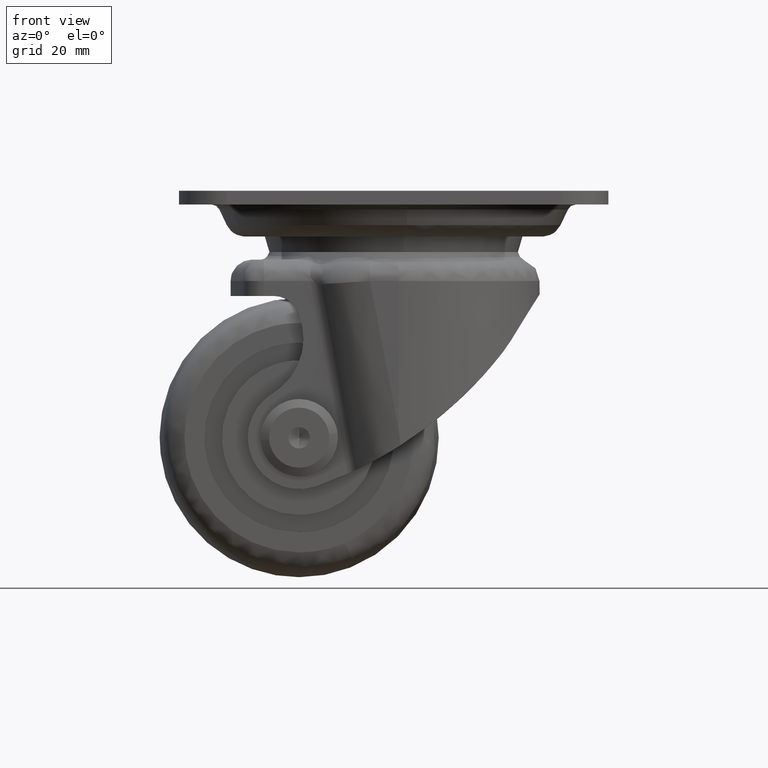
[diagram: clean part render]
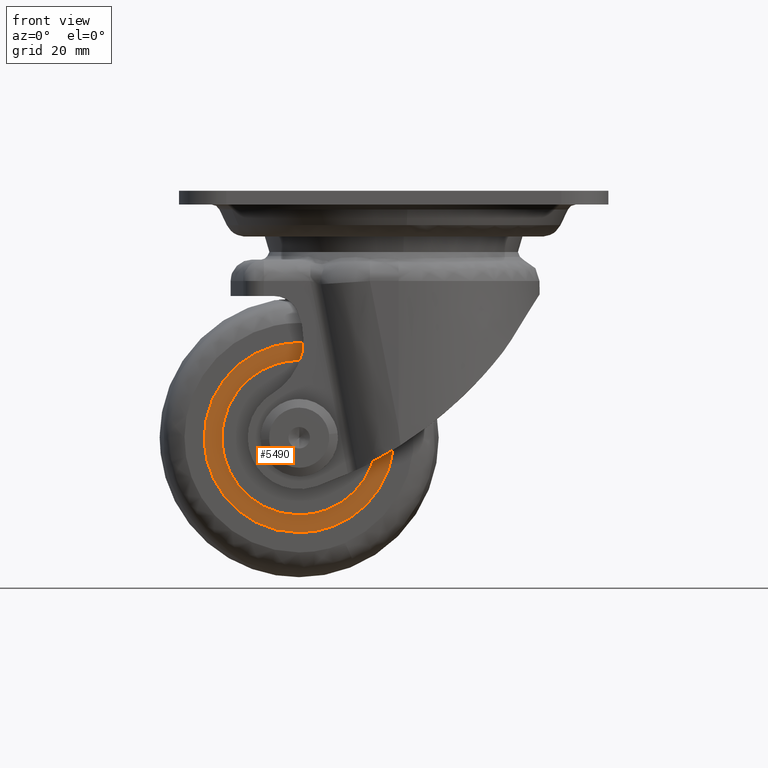
[diagram: same view with one face highlighted and labeled with its STEP entity id]
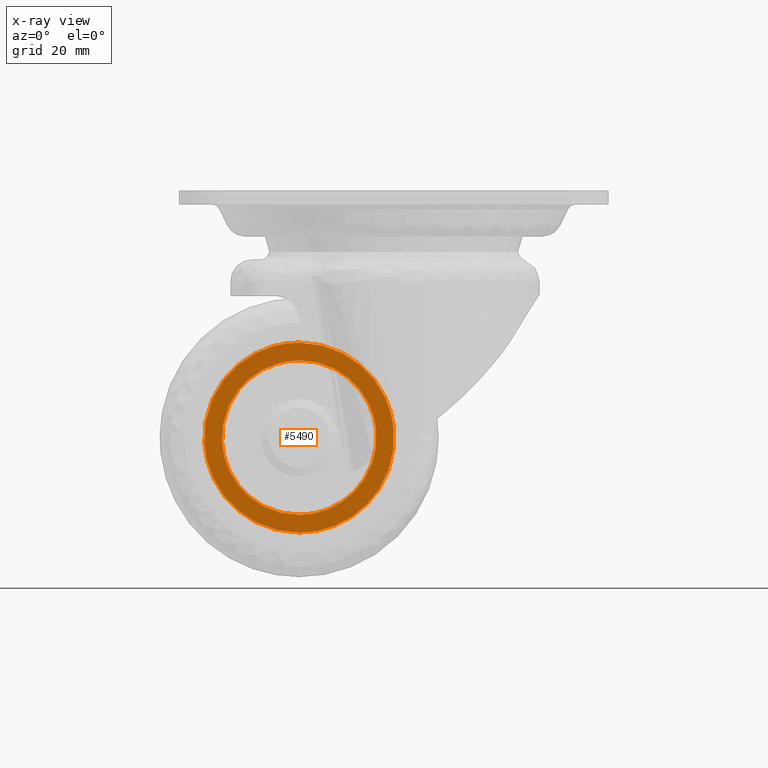
[diagram: x-ray of the same camera — body ghosted, the highlighted face saturated]
A machine part, front view. The second image highlights one B-rep face of the part: STEP entity #5490.
The next image is the same camera in x-ray: the body ghosted, the highlighted face saturated — about 0% of this face is hidden behind the body in this view.
In plain terms, the highlighted face is a freeform B-spline surface patch.
Its self-contained STEP definition (entity closure, byte-faithful):
#4506=CARTESIAN_POINT('',(21.965375085918840,-18.0,-54.889110960978691));
#4507=VERTEX_POINT('',#4506);
#4513=CARTESIAN_POINT('',(0.0,-18.0,-79.620001000000002));
#4514=VERTEX_POINT('',#4513);
#4515=CARTESIAN_POINT('',(21.965375085918847,-17.999999999999996,-54.889110960978684));
#4516=CARTESIAN_POINT('',(22.120001000000002,-17.999999999999996,-56.189976738737379));
#4517=CARTESIAN_POINT('',(22.120000999999998,-18.0,-57.500000000000000));
#4518=CARTESIAN_POINT('',(22.120000999999998,-18.000000000000007,-79.620001000000002));
#4519=CARTESIAN_POINT('',(0.0,-18.0,-79.620001000000002));
#4527=(BOUNDED_CURVE()B_SPLINE_CURVE(2,(#4515,#4516,#4517,#4518,#4519),.UNSPECIFIED.,.F.,.U.)B_SPLINE_CURVE_WITH_KNOTS((3,2,3),(0.229562691639808,0.250000000000000,0.500000000000000),.UNSPECIFIED.)CURVE()GEOMETRIC_REPRESENTATION_ITEM()RATIONAL_B_SPLINE_CURVE((0.956027181720618,0.976056203882001,1.0,0.707106781186547,1.0))REPRESENTATION_ITEM(''));
#4528=EDGE_CURVE('',#4507,#4514,#4527,.T.);
#4530=CARTESIAN_POINT('',(-22.078744921206539,-18.0,-58.850358079555043));
#4531=VERTEX_POINT('',#4530);
#4532=CARTESIAN_POINT('',(0.0,-18.0,-79.620001000000002));
#4533=CARTESIAN_POINT('',(-20.808452826862062,-18.000000000000004,-79.620001000000002));
#4534=CARTESIAN_POINT('',(-22.078744921206543,-18.000000000000004,-58.850358079555036));
#4542=(BOUNDED_CURVE()B_SPLINE_CURVE(2,(#4532,#4533,#4534),.UNSPECIFIED.,.F.,.U.)B_SPLINE_CURVE_WITH_KNOTS((3,3),(0.500000000000000,0.739333241052289),.UNSPECIFIED.)CURVE()GEOMETRIC_REPRESENTATION_ITEM()RATIONAL_B_SPLINE_CURVE((1.0,0.719603666636557,0.976072639217520))REPRESENTATION_ITEM(''));
#4543=EDGE_CURVE('',#4514,#4531,#4542,.T.);
#4617=CARTESIAN_POINT('',(0.0,-18.0,-35.379999000000012));
#4618=VERTEX_POINT('',#4617);
#4619=CARTESIAN_POINT('',(-22.078744921206543,-18.000000000000004,-58.850358079555036));
#4620=CARTESIAN_POINT('',(-22.120001000000006,-18.0,-58.175809266701464));
#4621=CARTESIAN_POINT('',(-22.120000999999998,-18.0,-57.500000000000000));
#4622=CARTESIAN_POINT('',(-22.120000999999998,-18.000000000000007,-35.379998999999998));
#4623=CARTESIAN_POINT('',(0.0,-18.0,-35.379999000000012));
#4631=(BOUNDED_CURVE()B_SPLINE_CURVE(2,(#4619,#4620,#4621,#4622,#4623),.UNSPECIFIED.,.F.,.U.)B_SPLINE_CURVE_WITH_KNOTS((3,2,3),(0.739333241052289,0.750000000000000,1.0),.UNSPECIFIED.)CURVE()GEOMETRIC_REPRESENTATION_ITEM()RATIONAL_B_SPLINE_CURVE((0.976072639217520,0.987503114549990,1.0,0.707106781186547,1.0))REPRESENTATION_ITEM(''));
#4632=EDGE_CURVE('',#4531,#4618,#4631,.T.);
#4634=CARTESIAN_POINT('',(0.0,-18.0,-35.379999000000012));
#4635=CARTESIAN_POINT('',(19.646446937398199,-17.999999999999996,-35.379998999999998));
#4636=CARTESIAN_POINT('',(21.965375085918847,-17.999999999999996,-54.889110960978684));
#4644=(BOUNDED_CURVE()B_SPLINE_CURVE(2,(#4634,#4635,#4636),.UNSPECIFIED.,.F.,.U.)B_SPLINE_CURVE_WITH_KNOTS((3,3),(0.0,0.229562691639808),.UNSPECIFIED.)CURVE()GEOMETRIC_REPRESENTATION_ITEM()RATIONAL_B_SPLINE_CURVE((1.0,0.731050577304547,0.956027181720618))REPRESENTATION_ITEM(''));
#4645=EDGE_CURVE('',#4618,#4507,#4644,.T.);
#4677=CARTESIAN_POINT('',(17.874173578703068,-17.999999999999229,-55.375401478378720));
#4678=VERTEX_POINT('',#4677);
#4679=CARTESIAN_POINT('',(0.0,-18.0,-75.500000000000000));
#4680=VERTEX_POINT('',#4679);
#4681=CARTESIAN_POINT('',(17.874173578703061,-17.999999999999229,-55.375401478378720));
#4682=CARTESIAN_POINT('',(18.000000000000004,-18.000000000000004,-56.433974790937192));
#4683=CARTESIAN_POINT('',(18.0,-18.0,-57.500000000000000));
#4684=CARTESIAN_POINT('',(18.000000000000007,-18.000000000000007,-75.500000000000014));
#4685=CARTESIAN_POINT('',(0.0,-18.0,-75.500000000000000));
#4693=(BOUNDED_CURVE()B_SPLINE_CURVE(2,(#4681,#4682,#4683,#4684,#4685),.UNSPECIFIED.,.F.,.U.)B_SPLINE_CURVE_WITH_KNOTS((3,2,3),(0.229562640892888,0.250000000000000,0.500000000000000),.UNSPECIFIED.)CURVE()GEOMETRIC_REPRESENTATION_ITEM()RATIONAL_B_SPLINE_CURVE((0.956027082254396,0.976056144428286,1.0,0.707106781186547,1.0))REPRESENTATION_ITEM(''));
#4694=EDGE_CURVE('',#4678,#4680,#4693,.T.);
#4735=CARTESIAN_POINT('',(-17.966428226879739,-17.999999999998810,-58.598843377126677));
#4736=VERTEX_POINT('',#4735);
#4742=CARTESIAN_POINT('',(0.0,-18.0,-75.500000000000000));
#4743=CARTESIAN_POINT('',(-16.932737846919977,-18.000000000000007,-75.499999999999986));
#4744=CARTESIAN_POINT('',(-17.966428226879742,-17.999999999998806,-58.598843377126677));
#4752=(BOUNDED_CURVE()B_SPLINE_CURVE(2,(#4742,#4743,#4744),.UNSPECIFIED.,.F.,.U.)B_SPLINE_CURVE_WITH_KNOTS((3,3),(0.500000000000000,0.739333253569901),.UNSPECIFIED.)CURVE()GEOMETRIC_REPRESENTATION_ITEM()RATIONAL_B_SPLINE_CURVE((1.0,0.719603651971261,0.976072666045214))REPRESENTATION_ITEM(''));
#4753=EDGE_CURVE('',#4680,#4736,#4752,.T.);
#4776=CARTESIAN_POINT('',(0.0,-18.0,-39.500000000000007));
#4777=VERTEX_POINT('',#4776);
#4778=CARTESIAN_POINT('',(0.0,-18.0,-39.500000000000007));
#4779=CARTESIAN_POINT('',(15.987157411917238,-18.0,-39.500000000000007));
#4780=CARTESIAN_POINT('',(17.874173578703065,-17.999999999999226,-55.375401478378713));
#4788=(BOUNDED_CURVE()B_SPLINE_CURVE(2,(#4778,#4779,#4780),.UNSPECIFIED.,.F.,.U.)B_SPLINE_CURVE_WITH_KNOTS((3,3),(0.0,0.229562640892888),.UNSPECIFIED.)CURVE()GEOMETRIC_REPRESENTATION_ITEM()RATIONAL_B_SPLINE_CURVE((1.0,0.731050636758261,0.956027082254396))REPRESENTATION_ITEM(''));
#4789=EDGE_CURVE('',#4777,#4678,#4788,.T.);
#4791=CARTESIAN_POINT('',(-17.966428226879742,-17.999999999998806,-58.598843377126677));
#4792=CARTESIAN_POINT('',(-18.0,-18.0,-58.049934529598701));
#4793=CARTESIAN_POINT('',(-18.0,-18.0,-57.500000000000000));
#4794=CARTESIAN_POINT('',(-18.000000000000007,-18.000000000000007,-39.500000000000007));
#4795=CARTESIAN_POINT('',(0.0,-18.0,-39.500000000000007));
#4803=(BOUNDED_CURVE()B_SPLINE_CURVE(2,(#4791,#4792,#4793,#4794,#4795),.UNSPECIFIED.,.F.,.U.)B_SPLINE_CURVE_WITH_KNOTS((3,2,3),(0.739333253569901,0.750000000000000,1.0),.UNSPECIFIED.)CURVE()GEOMETRIC_REPRESENTATION_ITEM()RATIONAL_B_SPLINE_CURVE((0.976072666045214,0.987503129215286,1.0,0.707106781186547,1.0))REPRESENTATION_ITEM(''));
#4804=EDGE_CURVE('',#4736,#4777,#4803,.T.);
#5473=CARTESIAN_POINT('',(-24.329252294165219,-18.0,-81.829791090621725));
#5474=CARTESIAN_POINT('',(-24.329252294165219,-18.0,-33.170209700451160));
#5475=CARTESIAN_POINT('',(24.329386776555030,-18.0,-81.829791090621725));
#5476=CARTESIAN_POINT('',(24.329386776555030,-18.0,-33.170209700451160));
#5477=B_SPLINE_SURFACE_WITH_KNOTS('',1,1,((#5473,#5475),(#5474,#5476)),.UNSPECIFIED.,.F.,.F.,.U.,(2,2),(2,2),(0.0,48.659581390170572),(0.0,48.658639070720263),.UNSPECIFIED.);
#5478=ORIENTED_EDGE('',*,*,#4632,.F.);
#5479=ORIENTED_EDGE('',*,*,#4543,.F.);
#5480=ORIENTED_EDGE('',*,*,#4528,.F.);
#5481=ORIENTED_EDGE('',*,*,#4645,.F.);
#5482=EDGE_LOOP('',(#5478,#5479,#5480,#5481));
#5483=FACE_OUTER_BOUND('',#5482,.T.);
#5484=ORIENTED_EDGE('',*,*,#4753,.T.);
#5485=ORIENTED_EDGE('',*,*,#4804,.T.);
#5486=ORIENTED_EDGE('',*,*,#4789,.T.);
#5487=ORIENTED_EDGE('',*,*,#4694,.T.);
#5488=EDGE_LOOP('',(#5484,#5485,#5486,#5487));
#5489=FACE_BOUND('',#5488,.T.);
#5490=ADVANCED_FACE('',(#5483,#5489),#5477,.F.);